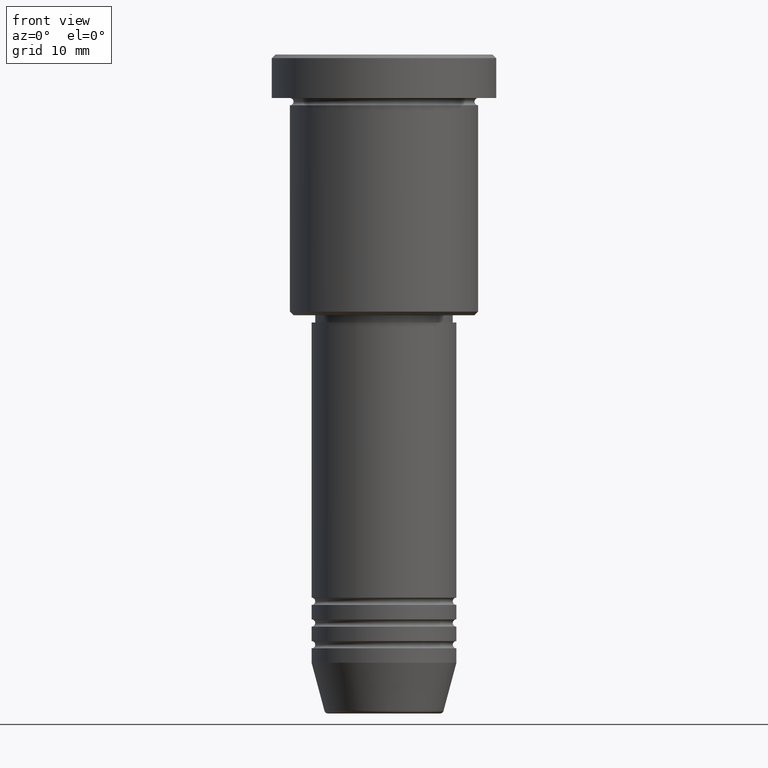
[diagram: clean part render]
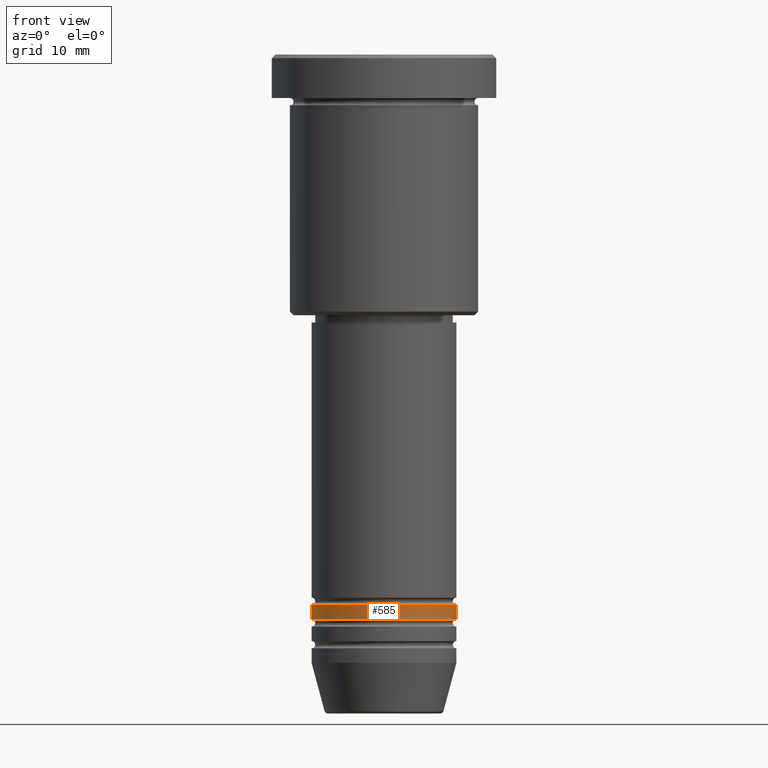
[diagram: same view with one face highlighted and labeled with its STEP entity id]
A machine part, front view. The second image highlights one B-rep face of the part: STEP entity #585.
In plain terms, the highlighted cylindrical surface (partial cylindrical patch) has radius 10 mm, axis along (-0, -0, 1).
Its self-contained STEP definition (entity closure, byte-faithful):
#25 = FACE_OUTER_BOUND ( 'NONE', #714, .T. ) ;
#41 = ORIENTED_EDGE ( 'NONE', *, *, #214, .T. ) ;
#78 = ORIENTED_EDGE ( 'NONE', *, *, #177, .F. ) ;
#130 = DIRECTION ( 'NONE',  ( 1.000000000000000000, 0.000000000000000000, 0.000000000000000000 ) ) ;
#177 = EDGE_CURVE ( 'NONE', #447, #315, #821, .T. ) ;
#214 = EDGE_CURVE ( 'NONE', #1021, #953, #270, .T. ) ;
#235 = ORIENTED_EDGE ( 'NONE', *, *, #426, .F. ) ;
#270 = LINE ( 'NONE', #511, #719 ) ;
#276 = DIRECTION ( 'NONE',  ( -0.000000000000000000, -0.000000000000000000, 1.000000000000000000 ) ) ;
#288 = EDGE_CURVE ( 'NONE', #447, #1021, #1170, .T. ) ;
#302 = AXIS2_PLACEMENT_3D ( 'NONE', #826, #276, #1009 ) ;
#315 = VERTEX_POINT ( 'NONE', #776 ) ;
#347 = DIRECTION ( 'NONE',  ( -0.000000000000000000, -0.000000000000000000, 1.000000000000000000 ) ) ;
#400 = CYLINDRICAL_SURFACE ( 'NONE', #869, 10.00000000000000000 ) ;
#426 = EDGE_CURVE ( 'NONE', #315, #953, #562, .T. ) ;
#447 = VERTEX_POINT ( 'NONE', #905 ) ;
#511 = CARTESIAN_POINT ( 'NONE',  ( 10.00000000000000000, 0.000000000000000000, 0.000000000000000000 ) ) ;
#534 = CARTESIAN_POINT ( 'NONE',  ( 10.00000000000000000, 0.000000000000000000, -75.99999999999997158 ) ) ;
#538 = DIRECTION ( 'NONE',  ( -0.000000000000000000, -0.000000000000000000, 1.000000000000000000 ) ) ;
#562 = CIRCLE ( 'NONE', #577, 10.00000000000000000 ) ;
#566 = DIRECTION ( 'NONE',  ( 1.000000000000000000, 0.000000000000000000, 0.000000000000000000 ) ) ;
#577 = AXIS2_PLACEMENT_3D ( 'NONE', #781, #538, #566 ) ;
#585 = ADVANCED_FACE ( 'NONE', ( #25 ), #400, .T. ) ;
#589 = CARTESIAN_POINT ( 'NONE',  ( 0.000000000000000000, 0.000000000000000000, 0.000000000000000000 ) ) ;
#596 = VECTOR ( 'NONE', #788, 1000.000000000000000 ) ;
#601 = CARTESIAN_POINT ( 'NONE',  ( -10.00000000000000000, 1.224646799147353256E-15, 0.000000000000000000 ) ) ;
#613 = CARTESIAN_POINT ( 'NONE',  ( 10.00000000000000000, 0.000000000000000000, -77.99999999999997158 ) ) ;
#714 = EDGE_LOOP ( 'NONE', ( #78, #986, #41, #235 ) ) ;
#719 = VECTOR ( 'NONE', #347, 1000.000000000000000 ) ;
#776 = CARTESIAN_POINT ( 'NONE',  ( -10.00000000000000000, 1.224646799147353256E-15, -75.99999999999997158 ) ) ;
#781 = CARTESIAN_POINT ( 'NONE',  ( 0.000000000000000000, 0.000000000000000000, -75.99999999999997158 ) ) ;
#788 = DIRECTION ( 'NONE',  ( -0.000000000000000000, -0.000000000000000000, 1.000000000000000000 ) ) ;
#792 = DIRECTION ( 'NONE',  ( -0.000000000000000000, -0.000000000000000000, 1.000000000000000000 ) ) ;
#821 = LINE ( 'NONE', #601, #596 ) ;
#826 = CARTESIAN_POINT ( 'NONE',  ( 0.000000000000000000, 0.000000000000000000, -77.99999999999997158 ) ) ;
#869 = AXIS2_PLACEMENT_3D ( 'NONE', #589, #792, #130 ) ;
#905 = CARTESIAN_POINT ( 'NONE',  ( -10.00000000000000000, 1.224646799147353256E-15, -77.99999999999997158 ) ) ;
#953 = VERTEX_POINT ( 'NONE', #534 ) ;
#986 = ORIENTED_EDGE ( 'NONE', *, *, #288, .T. ) ;
#1009 = DIRECTION ( 'NONE',  ( 1.000000000000000000, 0.000000000000000000, 0.000000000000000000 ) ) ;
#1021 = VERTEX_POINT ( 'NONE', #613 ) ;
#1170 = CIRCLE ( 'NONE', #302, 10.00000000000000000 ) ;